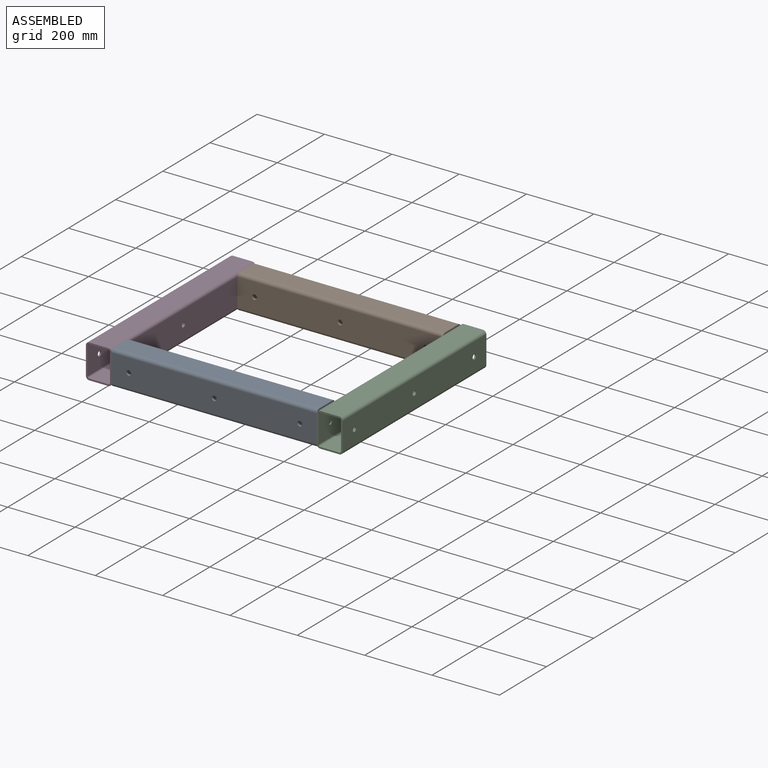
[diagram: assembled view]
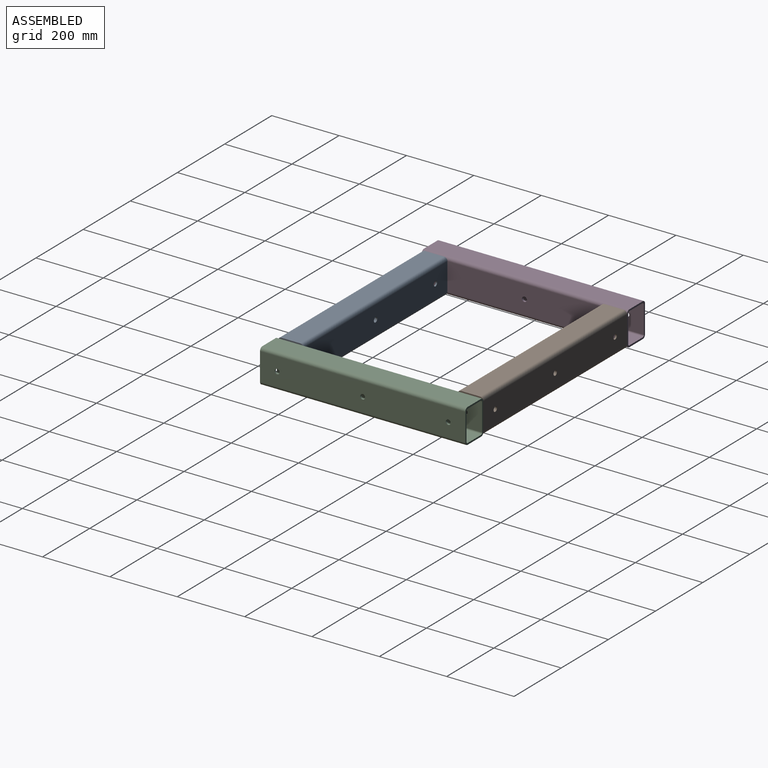
[diagram: assembled view, second angle]
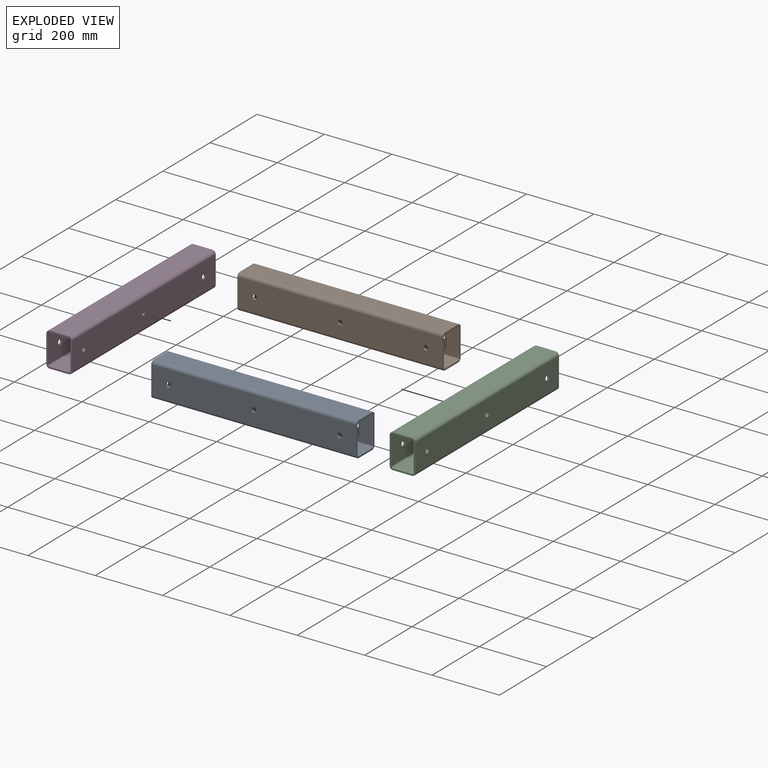
[diagram: exploded view]
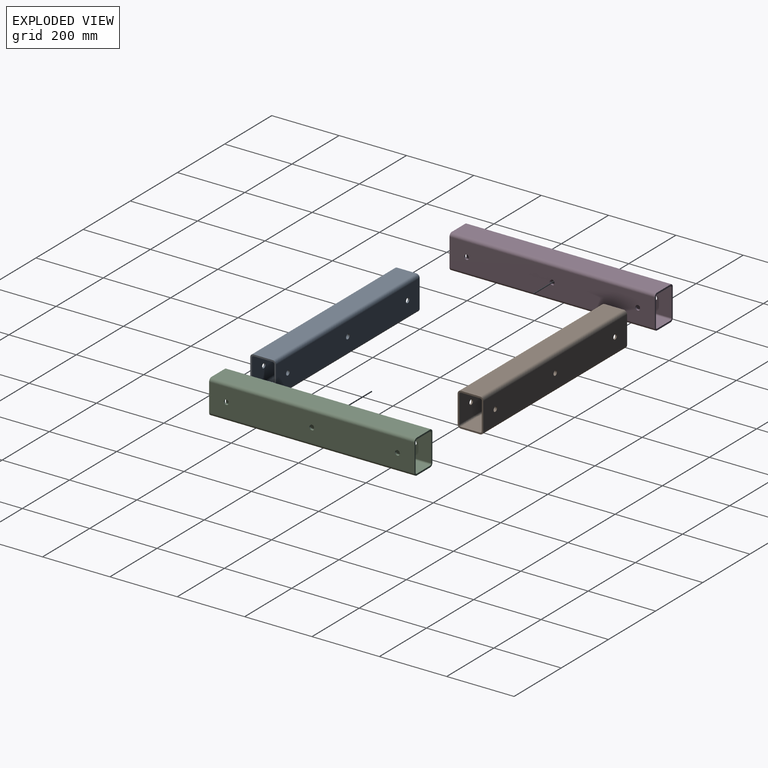
[diagram: exploded view, second angle]
ASSEMBLY  parts=4 mates=3
PART A: 24 faces, bbox 609.6x76.2x101.6 mm
  f0: cylinder r=9.53mm len=609.6mm, axis (-1,0,0), area 9120.7mm2, adj f1,f15,f16,f17
  f1: plane 609.6x57.15mm, normal (0,0,-1), area 34838.6mm2, adj f0,f2,f16,f17
  f2: cylinder r=9.53mm len=609.6mm, axis (-1,0,0), area 9120.7mm2, adj f1,f3,f16,f17
  f3: plane 609.6x82.55mm, normal (0,1,0), area 49841.5mm2, adj f2,f4,f16,f17,f18,f20,f22
  f4: cylinder r=9.53mm len=609.6mm, axis (-1,0,0), area 9120.7mm2, adj f3,f5,f16,f17
  f5: plane 609.6x57.15mm, normal (0,0,1), area 34838.6mm2, adj f4,f6,f16,f17
  f6: cylinder r=9.53mm len=609.6mm, axis (-1,0,0), area 9120.7mm2, adj f5,f15,f16,f17
  f7: cylinder r=4.76mm len=609.6mm, axis (-1,0,0), area 4560.4mm2, adj f8,f14,f16,f17
  f8: plane 609.6x57.15mm, normal (0,0,1), area 34838.6mm2, adj f7,f9,f16,f17
  f9: cylinder r=4.76mm len=609.6mm, axis (-1,0,0), area 4560.4mm2, adj f8,f10,f16,f17
  f10: plane 609.6x82.55mm, normal (0,1,0), area 49841.5mm2, adj f9,f11,f16,f17,f19,f21,f23
  f11: cylinder r=4.76mm len=609.6mm, axis (-1,0,0), area 4560.4mm2, adj f10,f12,f16,f17
  f12: plane 609.6x57.15mm, normal (0,0,-1), area 34838.6mm2, adj f11,f13,f16,f17
  f13: cylinder r=4.76mm len=609.6mm, axis (-1,0,0), area 4560.4mm2, adj f12,f14,f16,f17
  f14: plane 609.6x82.55mm, normal (0,-1,0), area 49841.5mm2, adj f7,f13,f16,f17,f18,f20,f22
  f15: plane 609.6x82.55mm, normal (0,-1,0), area 49841.5mm2, adj f0,f6,f16,f17,f19,f21,f23
  f16: plane 101.6x76.2mm, normal (1,0,0), area 1544.4mm2, adj f0,f1,f2,f3,f4,f5,f6,f7
  f17: plane 101.6x76.2mm, normal (-1,0,0), area 1544.4mm2, adj f0,f1,f2,f3,f4,f5,f6,f7
  f18: cylinder r=7.14mm len=14.29mm, axis (0,-1,0), area 213.8mm2, adj f3,f14
  f19: cylinder r=7.14mm len=14.29mm, axis (0,-1,0), area 213.8mm2, adj f10,f15
  f20: cylinder r=7.14mm len=14.29mm, axis (0,-1,0), area 213.8mm2, adj f3,f14
  f21: cylinder r=7.14mm len=14.29mm, axis (0,-1,0), area 213.8mm2, adj f10,f15
  f22: cylinder r=7.14mm len=14.29mm, axis (0,-1,0), area 213.8mm2, adj f3,f14
  f23: cylinder r=7.14mm len=14.29mm, axis (0,-1,0), area 213.8mm2, adj f10,f15
PART B: same geometry as A
PART C: same geometry as A
PART D: same geometry as A
PLACE A rot(axis=(0,0,1),180deg) t=(-266.7,-876.3,0)mm
PLACE B rot(axis=(0,0,1),180deg) t=(-266.7,-342.9,0)mm
PLACE C rot(axis=(0,0,1),90deg) t=(76.2,-609.6,0)mm
PLACE D rot(axis=(0,0,1),90deg) t=(-609.6,-609.6,0)mm
MATE fastened A.f17 <-> C.f3  axis (1,0,0) through (38.1,-876.3,0)mm
MATE fastened B.f17 <-> C.f3  axis (1,0,0) through (38.1,-342.9,0)mm
MATE fastened D.f15 <-> B.f16  axis (1,0,0) through (-571.5,-342.9,0)mm
